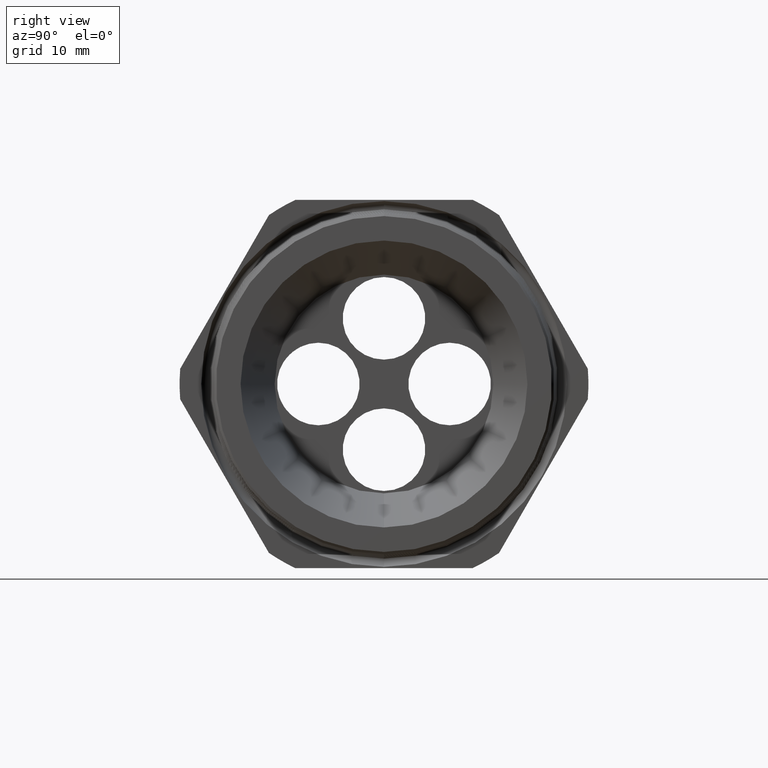
[diagram: clean part render]
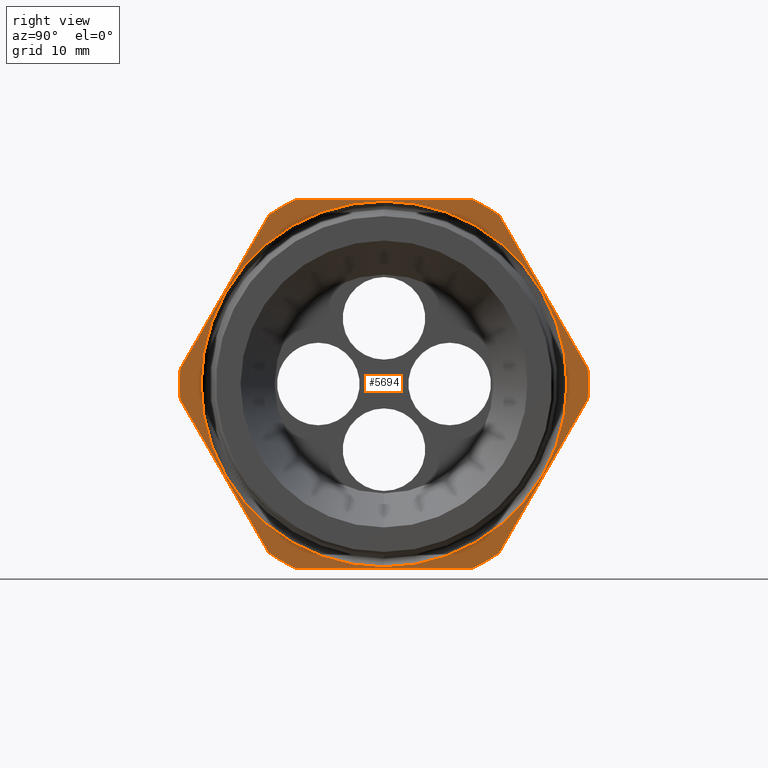
[diagram: same view with one face highlighted and labeled with its STEP entity id]
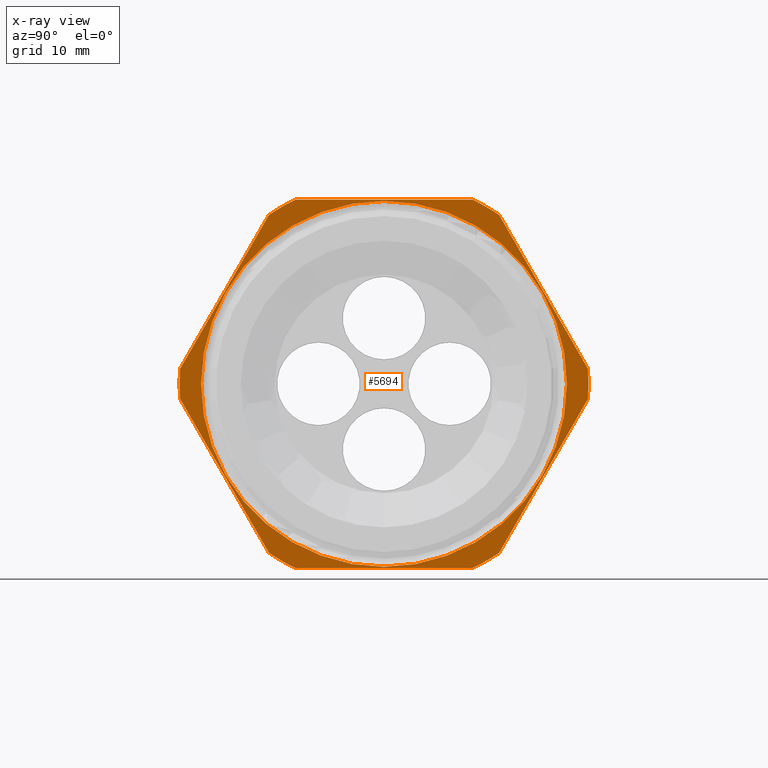
[diagram: x-ray of the same camera — body ghosted, the highlighted face saturated]
A machine part, right view. The second image highlights one B-rep face of the part: STEP entity #5694.
The next image is the same camera in x-ray: the body ghosted, the highlighted face saturated — about 0% of this face is hidden behind the body in this view.
In plain terms, the highlighted planar face has unit normal (1, 0, 0).
Its self-contained STEP definition (entity closure, byte-faithful):
#2138 = DIRECTION ( 'NONE',  ( 0.0000000000000000000, 0.0000000000000000000, -1.000000000000000000 ) ) ;
#2139 = DIRECTION ( 'NONE',  ( 1.000000000000000000, 0.0000000000000000000, 0.0000000000000000000 ) ) ;
#2140 = CARTESIAN_POINT ( 'NONE',  ( -0.3100000000000000000, 1.649999999999999900, 0.0000000000000000000 ) ) ;
#2141 = AXIS2_PLACEMENT_3D ( 'NONE', #2140, #2139, #2138 ) ;
#2142 = PLANE ( 'NONE',  #2141 ) ;
#2143 = FACE_OUTER_BOUND ( 'NONE', #5756, .T. ) ;
#2144 = FACE_BOUND ( 'NONE', #5695, .T. ) ;
#2218 = DIRECTION ( 'NONE',  ( 0.0000000000000000000, 0.0000000000000000000, -1.000000000000000000 ) ) ;
#2219 = DIRECTION ( 'NONE',  ( 1.000000000000000000, 0.0000000000000000000, 0.0000000000000000000 ) ) ;
#2220 = CARTESIAN_POINT ( 'NONE',  ( -0.3100000000000000000, 0.0000000000000000000, 0.0000000000000000000 ) ) ;
#2221 = AXIS2_PLACEMENT_3D ( 'NONE', #2220, #2219, #2218 ) ;
#2222 = CIRCLE ( 'NONE', #2221, 0.9157500000000000600 ) ;
#2223 = CARTESIAN_POINT ( 'NONE',  ( -0.3100000000000000000, 0.3974582525247150100, -0.8249999999999999600 ) ) ;
#2224 = DIRECTION ( 'NONE',  ( 0.0000000000000000000, 1.000000000000000000, 0.0000000000000000000 ) ) ;
#2225 = VECTOR ( 'NONE', #2224, 39.37007874015748100 ) ;
#2226 = CARTESIAN_POINT ( 'NONE',  ( -0.3100000000000000000, 1.649999999999999900, -0.8250000000000000700 ) ) ;
#2227 = LINE ( 'NONE', #2226, #2225 ) ;
#2228 = CARTESIAN_POINT ( 'NONE',  ( -0.3100000000000000000, -0.3974582525247148400, -0.8250000000000000700 ) ) ;
#2229 = DIRECTION ( 'NONE',  ( 0.0000000000000000000, 0.0000000000000000000, -1.000000000000000000 ) ) ;
#2230 = DIRECTION ( 'NONE',  ( 1.000000000000000000, 0.0000000000000000000, 0.0000000000000000000 ) ) ;
#2231 = CARTESIAN_POINT ( 'NONE',  ( -0.3100000000000000000, 0.0000000000000000000, 0.0000000000000000000 ) ) ;
#2232 = AXIS2_PLACEMENT_3D ( 'NONE', #2231, #2230, #2229 ) ;
#2233 = CIRCLE ( 'NONE', #2232, 0.9157500000000000600 ) ;
#2234 = CARTESIAN_POINT ( 'NONE',  ( -0.3100000000000000000, -0.5157418318598037100, -0.7567089436301741600 ) ) ;
#2235 = DIRECTION ( 'NONE',  ( 0.0000000000000000000, 0.5000000000000001100, -0.8660254037844384900 ) ) ;
#2236 = VECTOR ( 'NONE', #2235, 39.37007874015748900 ) ;
#2237 = CARTESIAN_POINT ( 'NONE',  ( -0.3100000000000000000, -0.3019709581221617400, -1.126970958122162300 ) ) ;
#2238 = LINE ( 'NONE', #2237, #2236 ) ;
#2244 = CIRCLE ( 'NONE', #2307, 0.8193600402971630300 ) ;
#2245 = CARTESIAN_POINT ( 'NONE',  ( -0.3100000000000000000, -0.9132000843845193800, -0.06829105636982593700 ) ) ;
#2246 = DIRECTION ( 'NONE',  ( 0.0000000000000000000, 0.0000000000000000000, -1.000000000000000000 ) ) ;
#2247 = DIRECTION ( 'NONE',  ( 1.000000000000000000, 0.0000000000000000000, 0.0000000000000000000 ) ) ;
#2248 = CARTESIAN_POINT ( 'NONE',  ( -0.3100000000000000000, 0.0000000000000000000, 0.0000000000000000000 ) ) ;
#2249 = AXIS2_PLACEMENT_3D ( 'NONE', #2248, #2247, #2246 ) ;
#2250 = CIRCLE ( 'NONE', #2249, 0.9157500000000000600 ) ;
#2251 = CARTESIAN_POINT ( 'NONE',  ( -0.3100000000000000000, -0.9132000843845194900, 0.06829105636982570100 ) ) ;
#2252 = DIRECTION ( 'NONE',  ( 0.0000000000000000000, -0.4999999999999998300, -0.8660254037844388200 ) ) ;
#2253 = VECTOR ( 'NONE', #2252, 39.37007874015748100 ) ;
#2254 = CARTESIAN_POINT ( 'NONE',  ( -0.3100000000000000000, -0.3019709581221620100, 1.126970958122161200 ) ) ;
#2255 = LINE ( 'NONE', #2254, #2253 ) ;
#2256 = CARTESIAN_POINT ( 'NONE',  ( -0.3100000000000000000, -0.5157418318598044900, 0.7567089436301736000 ) ) ;
#2257 = DIRECTION ( 'NONE',  ( 0.0000000000000000000, 0.0000000000000000000, -1.000000000000000000 ) ) ;
#2258 = DIRECTION ( 'NONE',  ( 1.000000000000000000, 0.0000000000000000000, 0.0000000000000000000 ) ) ;
#2259 = CARTESIAN_POINT ( 'NONE',  ( -0.3100000000000000000, 0.0000000000000000000, 0.0000000000000000000 ) ) ;
#2260 = AXIS2_PLACEMENT_3D ( 'NONE', #2259, #2258, #2257 ) ;
#2261 = CIRCLE ( 'NONE', #2260, 0.9157500000000000600 ) ;
#2262 = CARTESIAN_POINT ( 'NONE',  ( -0.3100000000000000000, -0.3974582525247157800, 0.8249999999999995100 ) ) ;
#2263 = DIRECTION ( 'NONE',  ( 0.0000000000000000000, -1.000000000000000000, 0.0000000000000000000 ) ) ;
#2264 = VECTOR ( 'NONE', #2263, 39.37007874015748100 ) ;
#2265 = CARTESIAN_POINT ( 'NONE',  ( -0.3100000000000000000, 1.649999999999999900, 0.8249999999999998400 ) ) ;
#2266 = LINE ( 'NONE', #2265, #2264 ) ;
#2267 = CARTESIAN_POINT ( 'NONE',  ( -0.3100000000000000000, 0.3974582525247153400, 0.8249999999999998400 ) ) ;
#2268 = DIRECTION ( 'NONE',  ( 0.0000000000000000000, 0.0000000000000000000, -1.000000000000000000 ) ) ;
#2269 = DIRECTION ( 'NONE',  ( 1.000000000000000000, 0.0000000000000000000, 0.0000000000000000000 ) ) ;
#2270 = CARTESIAN_POINT ( 'NONE',  ( -0.3100000000000000000, 0.0000000000000000000, 0.0000000000000000000 ) ) ;
#2271 = AXIS2_PLACEMENT_3D ( 'NONE', #2270, #2269, #2268 ) ;
#2272 = CIRCLE ( 'NONE', #2271, 0.9157500000000000600 ) ;
#2287 = CARTESIAN_POINT ( 'NONE',  ( -0.3100000000000000000, 0.5157418318598044900, 0.7567089436301736000 ) ) ;
#2288 = DIRECTION ( 'NONE',  ( 0.0000000000000000000, -0.4999999999999998300, 0.8660254037844386000 ) ) ;
#2289 = VECTOR ( 'NONE', #2288, 39.37007874015748900 ) ;
#2290 = CARTESIAN_POINT ( 'NONE',  ( -0.3100000000000000000, 1.126970958122161900, -0.3019709581221617400 ) ) ;
#2291 = LINE ( 'NONE', #2290, #2289 ) ;
#2292 = CARTESIAN_POINT ( 'NONE',  ( -0.3100000000000000000, 0.9132000843845192700, 0.06829105636982647800 ) ) ;
#2293 = DIRECTION ( 'NONE',  ( 0.0000000000000000000, 0.0000000000000000000, -1.000000000000000000 ) ) ;
#2294 = DIRECTION ( 'NONE',  ( 1.000000000000000000, 0.0000000000000000000, 0.0000000000000000000 ) ) ;
#2295 = CARTESIAN_POINT ( 'NONE',  ( -0.3100000000000000000, 0.0000000000000000000, 0.0000000000000000000 ) ) ;
#2296 = AXIS2_PLACEMENT_3D ( 'NONE', #2295, #2294, #2293 ) ;
#2297 = CIRCLE ( 'NONE', #2296, 0.9157499999999999500 ) ;
#2298 = CARTESIAN_POINT ( 'NONE',  ( -0.3100000000000000000, 0.9132000843845194900, -0.06829105636982671400 ) ) ;
#2299 = CARTESIAN_POINT ( 'NONE',  ( -0.3100000000000000000, 0.5157418318598049300, -0.7567089436301733800 ) ) ;
#2300 = DIRECTION ( 'NONE',  ( 0.0000000000000000000, 0.4999999999999998300, 0.8660254037844386000 ) ) ;
#2301 = VECTOR ( 'NONE', #2300, 39.37007874015748900 ) ;
#2302 = CARTESIAN_POINT ( 'NONE',  ( -0.3100000000000000000, 1.126970958122162100, 0.3019709581221616800 ) ) ;
#2303 = LINE ( 'NONE', #2302, #2301 ) ;
#2304 = DIRECTION ( 'NONE',  ( 0.0000000000000000000, 0.0000000000000000000, -1.000000000000000000 ) ) ;
#2305 = DIRECTION ( 'NONE',  ( 1.000000000000000000, 0.0000000000000000000, 0.0000000000000000000 ) ) ;
#2306 = CARTESIAN_POINT ( 'NONE',  ( -0.3100000000000000000, 0.0000000000000000000, 0.0000000000000000000 ) ) ;
#2307 = AXIS2_PLACEMENT_3D ( 'NONE', #2306, #2305, #2304 ) ;
#3519 = CARTESIAN_POINT ( 'NONE',  ( -0.3100000000000000000, 1.003426650699167000E-016, 0.8193600402971630300 ) ) ;
#3532 = DIRECTION ( 'NONE',  ( 0.0000000000000000000, 0.0000000000000000000, -1.000000000000000000 ) ) ;
#3533 = DIRECTION ( 'NONE',  ( 1.000000000000000000, 0.0000000000000000000, 0.0000000000000000000 ) ) ;
#3534 = CARTESIAN_POINT ( 'NONE',  ( -0.3100000000000000000, 0.0000000000000000000, 0.0000000000000000000 ) ) ;
#3535 = AXIS2_PLACEMENT_3D ( 'NONE', #3534, #3533, #3532 ) ;
#3536 = CIRCLE ( 'NONE', #3535, 0.8193600402971630300 ) ;
#3537 = CARTESIAN_POINT ( 'NONE',  ( -0.3100000000000000000, 0.0000000000000000000, -0.8193600402971630300 ) ) ;
#5694 = ADVANCED_FACE ( 'NONE', ( #2144, #2143 ), #2142, .T. ) ;
#5695 = EDGE_LOOP ( 'NONE', ( #5696, #5755 ) ) ;
#5696 = ORIENTED_EDGE ( 'NONE', *, *, #5754, .F. ) ;
#5725 = EDGE_CURVE ( 'NONE', #5752, #5726, #2238, .T. ) ;
#5726 = VERTEX_POINT ( 'NONE', #2234 ) ;
#5727 = ORIENTED_EDGE ( 'NONE', *, *, #5728, .T. ) ;
#5728 = EDGE_CURVE ( 'NONE', #5726, #5729, #2233, .T. ) ;
#5729 = VERTEX_POINT ( 'NONE', #2228 ) ;
#5730 = ORIENTED_EDGE ( 'NONE', *, *, #5731, .T. ) ;
#5731 = EDGE_CURVE ( 'NONE', #5729, #5732, #2227, .T. ) ;
#5732 = VERTEX_POINT ( 'NONE', #2223 ) ;
#5733 = ORIENTED_EDGE ( 'NONE', *, *, #5734, .T. ) ;
#5734 = EDGE_CURVE ( 'NONE', #5732, #5759, #2222, .T. ) ;
#5739 = EDGE_CURVE ( 'NONE', #5766, #5740, #2272, .T. ) ;
#5740 = VERTEX_POINT ( 'NONE', #2267 ) ;
#5741 = ORIENTED_EDGE ( 'NONE', *, *, #5742, .T. ) ;
#5742 = EDGE_CURVE ( 'NONE', #5740, #5743, #2266, .T. ) ;
#5743 = VERTEX_POINT ( 'NONE', #2262 ) ;
#5744 = ORIENTED_EDGE ( 'NONE', *, *, #5745, .T. ) ;
#5745 = EDGE_CURVE ( 'NONE', #5743, #5746, #2261, .T. ) ;
#5746 = VERTEX_POINT ( 'NONE', #2256 ) ;
#5747 = ORIENTED_EDGE ( 'NONE', *, *, #5748, .T. ) ;
#5748 = EDGE_CURVE ( 'NONE', #5746, #5749, #2255, .T. ) ;
#5749 = VERTEX_POINT ( 'NONE', #2251 ) ;
#5750 = ORIENTED_EDGE ( 'NONE', *, *, #5751, .T. ) ;
#5751 = EDGE_CURVE ( 'NONE', #5749, #5752, #2250, .T. ) ;
#5752 = VERTEX_POINT ( 'NONE', #2245 ) ;
#5753 = ORIENTED_EDGE ( 'NONE', *, *, #5725, .T. ) ;
#5754 = EDGE_CURVE ( 'NONE', #6656, #6665, #2244, .T. ) ;
#5755 = ORIENTED_EDGE ( 'NONE', *, *, #6658, .F. ) ;
#5756 = EDGE_LOOP ( 'NONE', ( #5757, #5761, #5764, #5767, #5741, #5744, #5747, #5750, #5753, #5727, #5730, #5733 ) ) ;
#5757 = ORIENTED_EDGE ( 'NONE', *, *, #5758, .T. ) ;
#5758 = EDGE_CURVE ( 'NONE', #5759, #5760, #2303, .T. ) ;
#5759 = VERTEX_POINT ( 'NONE', #2299 ) ;
#5760 = VERTEX_POINT ( 'NONE', #2298 ) ;
#5761 = ORIENTED_EDGE ( 'NONE', *, *, #5762, .T. ) ;
#5762 = EDGE_CURVE ( 'NONE', #5760, #5763, #2297, .T. ) ;
#5763 = VERTEX_POINT ( 'NONE', #2292 ) ;
#5764 = ORIENTED_EDGE ( 'NONE', *, *, #5765, .T. ) ;
#5765 = EDGE_CURVE ( 'NONE', #5763, #5766, #2291, .T. ) ;
#5766 = VERTEX_POINT ( 'NONE', #2287 ) ;
#5767 = ORIENTED_EDGE ( 'NONE', *, *, #5739, .T. ) ;
#6656 = VERTEX_POINT ( 'NONE', #3537 ) ;
#6658 = EDGE_CURVE ( 'NONE', #6665, #6656, #3536, .T. ) ;
#6665 = VERTEX_POINT ( 'NONE', #3519 ) ;